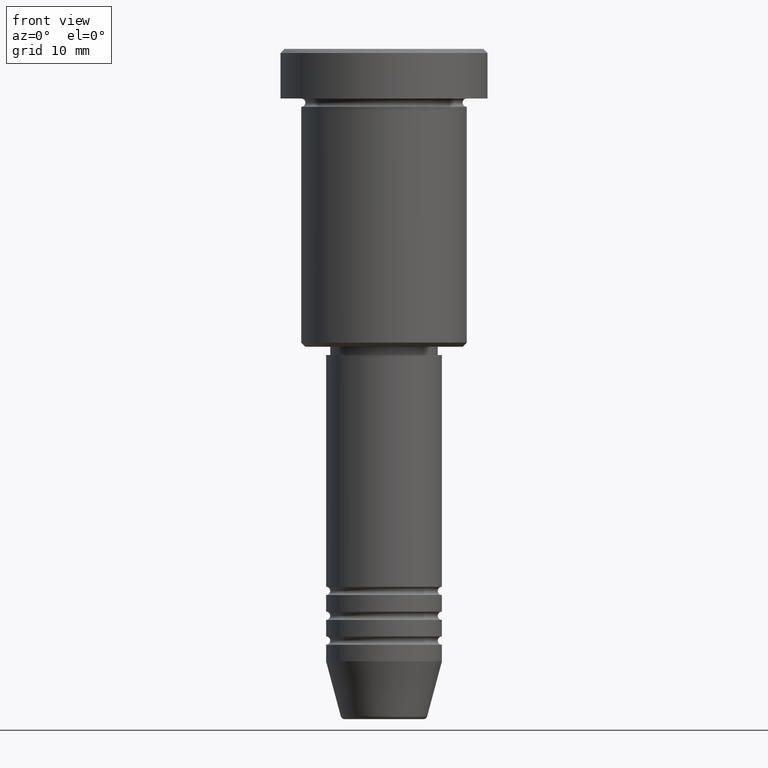
[diagram: clean part render]
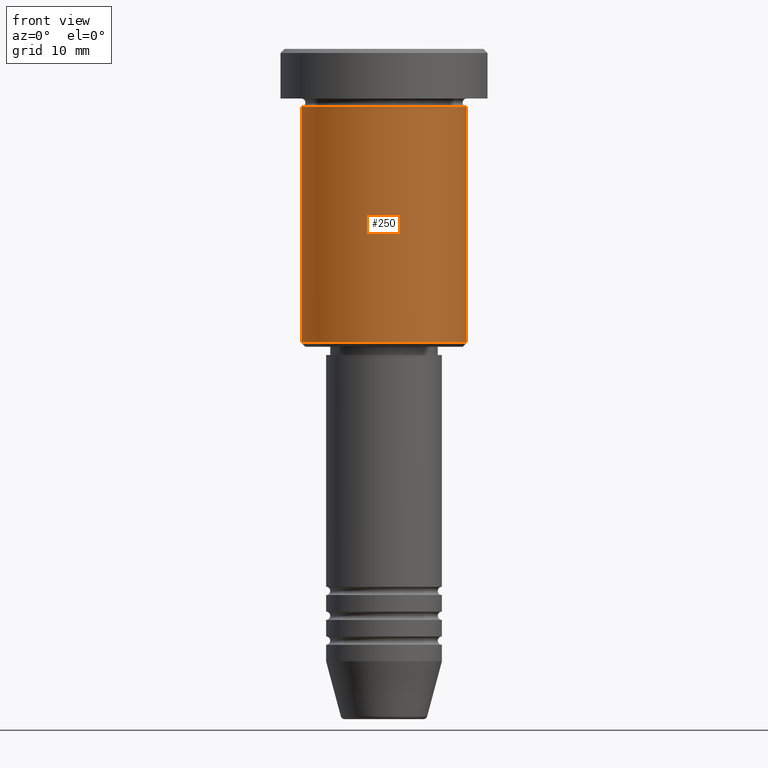
[diagram: same view with one face highlighted and labeled with its STEP entity id]
A machine part, front view. The second image highlights one B-rep face of the part: STEP entity #250.
In plain terms, the highlighted cylindrical surface (partial cylindrical patch) has radius 10 mm, axis along (-0, -0, 1).
Its self-contained STEP definition (entity closure, byte-faithful):
#13 = DIRECTION ( 'NONE',  ( -0.000000000000000000, -0.000000000000000000, 1.000000000000000000 ) ) ;
#27 = LINE ( 'NONE', #967, #352 ) ;
#60 = ORIENTED_EDGE ( 'NONE', *, *, #874, .T. ) ;
#105 = CARTESIAN_POINT ( 'NONE',  ( 0.000000000000000000, 0.000000000000000000, 0.000000000000000000 ) ) ;
#154 = ORIENTED_EDGE ( 'NONE', *, *, #1086, .T. ) ;
#169 = DIRECTION ( 'NONE',  ( -0.000000000000000000, -0.000000000000000000, 1.000000000000000000 ) ) ;
#171 = EDGE_CURVE ( 'NONE', #1149, #211, #300, .T. ) ;
#187 = FACE_OUTER_BOUND ( 'NONE', #512, .T. ) ;
#192 = DIRECTION ( 'NONE',  ( -0.000000000000000000, -0.000000000000000000, 1.000000000000000000 ) ) ;
#211 = VERTEX_POINT ( 'NONE', #1090 ) ;
#229 = ORIENTED_EDGE ( 'NONE', *, *, #278, .F. ) ;
#250 = ADVANCED_FACE ( 'NONE', ( #187 ), #549, .T. ) ;
#278 = EDGE_CURVE ( 'NONE', #902, #1149, #923, .T. ) ;
#300 = CIRCLE ( 'NONE', #696, 10.00000000000000000 ) ;
#348 = CARTESIAN_POINT ( 'NONE',  ( 0.000000000000000000, 0.000000000000000000, -6.999999999999996447 ) ) ;
#352 = VECTOR ( 'NONE', #860, 1000.000000000000000 ) ;
#417 = CARTESIAN_POINT ( 'NONE',  ( -10.00000000000000000, 1.224646799147353256E-15, -35.50000000000000000 ) ) ;
#468 = DIRECTION ( 'NONE',  ( -0.000000000000000000, -0.000000000000000000, 1.000000000000000000 ) ) ;
#512 = EDGE_LOOP ( 'NONE', ( #229, #154, #60, #1100 ) ) ;
#549 = CYLINDRICAL_SURFACE ( 'NONE', #671, 10.00000000000000000 ) ;
#636 = DIRECTION ( 'NONE',  ( 1.000000000000000000, 0.000000000000000000, 0.000000000000000000 ) ) ;
#671 = AXIS2_PLACEMENT_3D ( 'NONE', #105, #468, #1096 ) ;
#696 = AXIS2_PLACEMENT_3D ( 'NONE', #348, #192, #636 ) ;
#833 = CARTESIAN_POINT ( 'NONE',  ( -10.00000000000000000, 1.224646799147353256E-15, 0.000000000000000000 ) ) ;
#843 = VECTOR ( 'NONE', #13, 1000.000000000000000 ) ;
#860 = DIRECTION ( 'NONE',  ( -0.000000000000000000, -0.000000000000000000, 1.000000000000000000 ) ) ;
#874 = EDGE_CURVE ( 'NONE', #1071, #211, #27, .T. ) ;
#888 = AXIS2_PLACEMENT_3D ( 'NONE', #985, #169, #917 ) ;
#902 = VERTEX_POINT ( 'NONE', #417 ) ;
#917 = DIRECTION ( 'NONE',  ( -1.000000000000000000, 0.000000000000000000, 0.000000000000000000 ) ) ;
#923 = LINE ( 'NONE', #833, #843 ) ;
#967 = CARTESIAN_POINT ( 'NONE',  ( 10.00000000000000000, 0.000000000000000000, 0.000000000000000000 ) ) ;
#978 = CARTESIAN_POINT ( 'NONE',  ( 10.00000000000000000, 0.000000000000000000, -35.50000000000000000 ) ) ;
#985 = CARTESIAN_POINT ( 'NONE',  ( 0.000000000000000000, 0.000000000000000000, -35.50000000000000000 ) ) ;
#1071 = VERTEX_POINT ( 'NONE', #978 ) ;
#1086 = EDGE_CURVE ( 'NONE', #902, #1071, #1151, .T. ) ;
#1090 = CARTESIAN_POINT ( 'NONE',  ( 10.00000000000000000, 0.000000000000000000, -6.999999999999996447 ) ) ;
#1096 = DIRECTION ( 'NONE',  ( 1.000000000000000000, 0.000000000000000000, 0.000000000000000000 ) ) ;
#1100 = ORIENTED_EDGE ( 'NONE', *, *, #171, .F. ) ;
#1142 = CARTESIAN_POINT ( 'NONE',  ( -10.00000000000000000, 1.224646799147353256E-15, -6.999999999999996447 ) ) ;
#1149 = VERTEX_POINT ( 'NONE', #1142 ) ;
#1151 = CIRCLE ( 'NONE', #888, 10.00000000000000000 ) ;